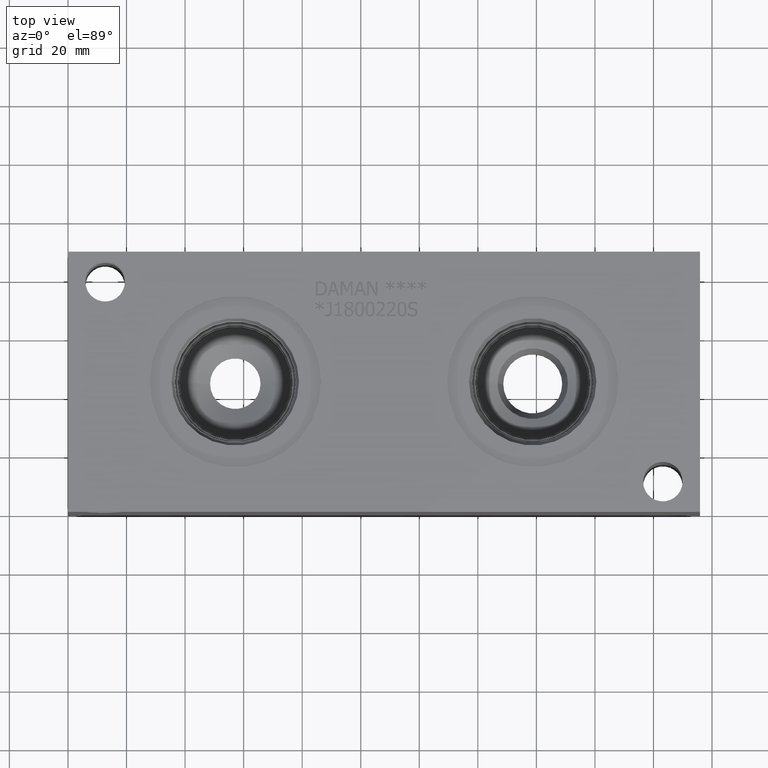
[diagram: clean part render]
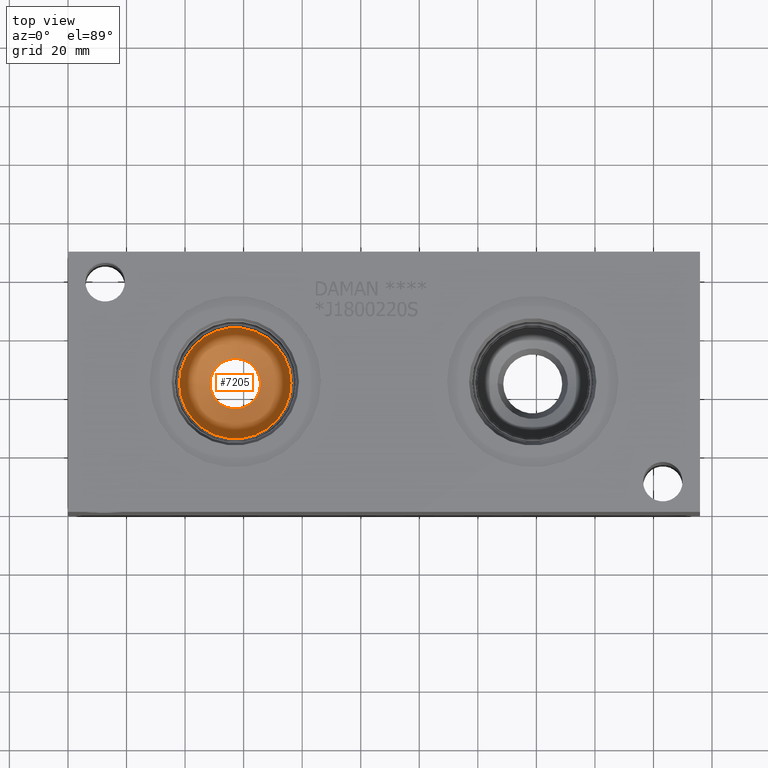
[diagram: same view with one face highlighted and labeled with its STEP entity id]
A machine part, top view. The second image highlights one B-rep face of the part: STEP entity #7205.
In plain terms, the highlighted conical surface has half-angle 60 deg.
Its self-contained STEP definition (entity closure, byte-faithful):
#25=CONICAL_SURFACE('',#7553,9.525,1.0471975511966);
#106=CIRCLE('',#7512,8.60831946041743);
#131=CIRCLE('',#7554,19.05);
#132=CIRCLE('',#7555,19.05);
#867=FACE_OUTER_BOUND('',#1272,.T.);
#1272=EDGE_LOOP('',(#6236,#6237,#6238,#6239,#6240));
#1973=LINE('',#12333,#2664);
#2664=VECTOR('',#8899,9.525);
#3297=VERTEX_POINT('',#12250);
#3322=VERTEX_POINT('',#12330);
#3323=VERTEX_POINT('',#12331);
#4267=EDGE_CURVE('',#3297,#3297,#106,.T.);
#4304=EDGE_CURVE('',#3322,#3323,#131,.T.);
#4305=EDGE_CURVE('',#3323,#3297,#1973,.T.);
#4306=EDGE_CURVE('',#3323,#3322,#132,.T.);
#6236=ORIENTED_EDGE('',*,*,#4304,.T.);
#6237=ORIENTED_EDGE('',*,*,#4305,.T.);
#6238=ORIENTED_EDGE('',*,*,#4267,.T.);
#6239=ORIENTED_EDGE('',*,*,#4305,.F.);
#6240=ORIENTED_EDGE('',*,*,#4306,.T.);
#7205=ADVANCED_FACE('',(#867),#25,.F.);
#7512=AXIS2_PLACEMENT_3D('',#12252,#8801,#8802);
#7553=AXIS2_PLACEMENT_3D('',#12329,#8895,#8896);
#7554=AXIS2_PLACEMENT_3D('',#12332,#8897,#8898);
#7555=AXIS2_PLACEMENT_3D('',#12334,#8900,#8901);
#8801=DIRECTION('center_axis',(0.,0.,-1.));
#8802=DIRECTION('ref_axis',(1.,0.,0.));
#8895=DIRECTION('center_axis',(0.,0.,1.));
#8896=DIRECTION('ref_axis',(1.,0.,0.));
#8897=DIRECTION('center_axis',(0.,0.,1.));
#8898=DIRECTION('ref_axis',(1.,0.,0.));
#8899=DIRECTION('',(0.866025403784439,1.06057523872491E-16,-0.5));
#8900=DIRECTION('center_axis',(0.,0.,1.));
#8901=DIRECTION('ref_axis',(1.,0.,0.));
#12250=CARTESIAN_POINT('',(48.5416805395826,44.45,49.8645129296799));
#12252=CARTESIAN_POINT('Origin',(57.15,44.45,49.8645129296799));
#12329=CARTESIAN_POINT('Origin',(57.15,44.45,50.3937586859688));
#12330=CARTESIAN_POINT('',(76.2,44.45,55.89302));
#12331=CARTESIAN_POINT('',(38.1,44.45,55.89302));
#12332=CARTESIAN_POINT('Origin',(57.15,44.45,55.89302));
#12333=CARTESIAN_POINT('',(47.625,44.45,50.3937586859688));
#12334=CARTESIAN_POINT('Origin',(57.15,44.45,55.89302));